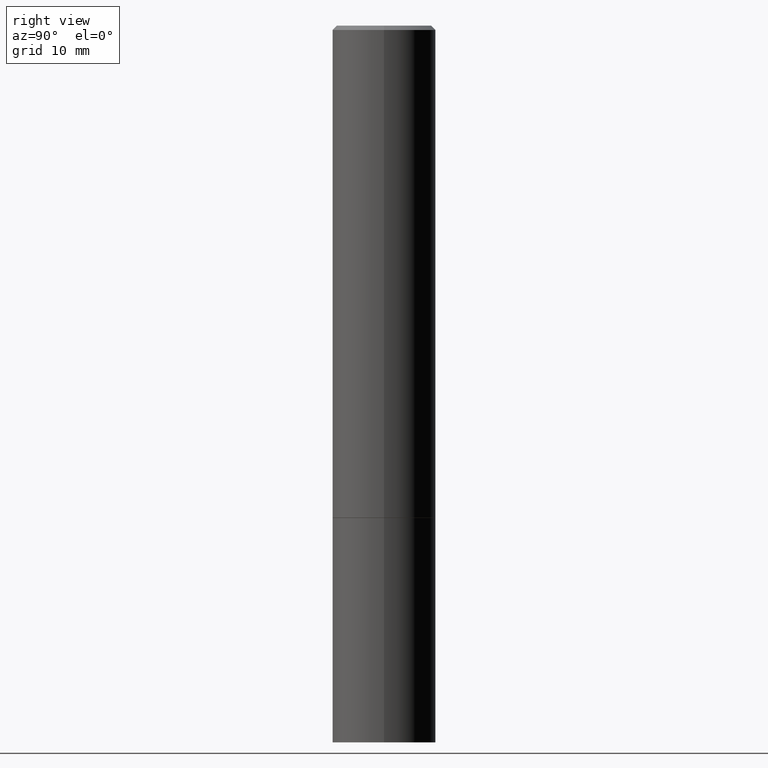
[diagram: clean part render]
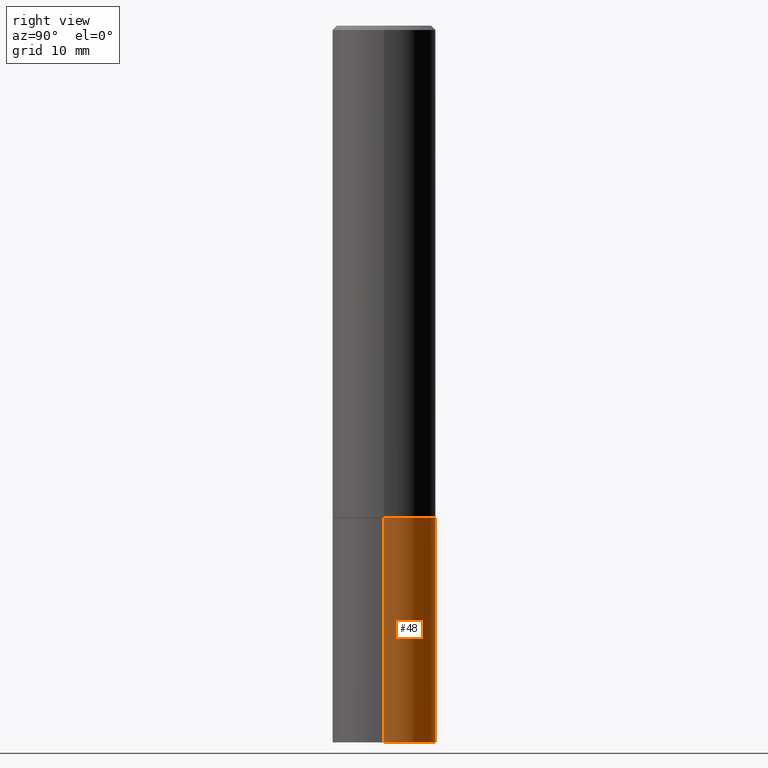
[diagram: same view with one face highlighted and labeled with its STEP entity id]
A machine part, right view. The second image highlights one B-rep face of the part: STEP entity #48.
In plain terms, the highlighted cylindrical surface (partial cylindrical patch) has radius 5.9995 mm, axis along (-0, 0, 1).
Its self-contained STEP definition (entity closure, byte-faithful):
#1 = EDGE_CURVE ( 'NONE', #11, #229, #306, .T. ) ;
#11 = VERTEX_POINT ( 'NONE', #192 ) ;
#14 = ORIENTED_EDGE ( 'NONE', *, *, #1, .T. ) ;
#19 = DIRECTION ( 'NONE',  ( -2.445468806185136597E-29, 3.491481338843145583E-15, 1.000000000000000000 ) ) ;
#20 = AXIS2_PLACEMENT_3D ( 'NONE', #321, #90, #350 ) ;
#43 = CARTESIAN_POINT ( 'NONE',  ( 7.991058417971171713E-29, -1.140911357093774644E-14, -3.267700000000000049 ) ) ;
#48 = ADVANCED_FACE ( 'NONE', ( #99 ), #263, .T. ) ;
#60 = CARTESIAN_POINT ( 'NONE',  ( -0.2361999999999999933, -7.943871479852467996E-15, -2.244100000000000428 ) ) ;
#61 = DIRECTION ( 'NONE',  ( -2.445468806185136877E-29, 3.491481338843145188E-15, 1.000000000000000000 ) ) ;
#69 = EDGE_CURVE ( 'NONE', #116, #11, #264, .T. ) ;
#82 = CARTESIAN_POINT ( 'NONE',  ( -0.2361999999999999933, 1.678301941865356591E-15, -1.161852468318208757E-29 ) ) ;
#90 = DIRECTION ( 'NONE',  ( -2.445468806185136597E-29, 3.491481338843145583E-15, 1.000000000000000000 ) ) ;
#91 = AXIS2_PLACEMENT_3D ( 'NONE', #43, #19, #151 ) ;
#92 = EDGE_CURVE ( 'NONE', #231, #229, #175, .T. ) ;
#93 = CARTESIAN_POINT ( 'NONE',  ( 0.000000000000000000, 0.000000000000000000, 0.000000000000000000 ) ) ;
#96 = DIRECTION ( 'NONE',  ( -2.445468806185136597E-29, 3.491481338843145583E-15, 1.000000000000000000 ) ) ;
#99 = FACE_OUTER_BOUND ( 'NONE', #167, .T. ) ;
#106 = DIRECTION ( 'NONE',  ( -2.445468806185136877E-29, 3.491481338843145188E-15, 1.000000000000000000 ) ) ;
#116 = VERTEX_POINT ( 'NONE', #362 ) ;
#151 = DIRECTION ( 'NONE',  ( 1.000000000000000000, -6.982962677686265133E-15, 0.000000000000000000 ) ) ;
#153 = DIRECTION ( 'NONE',  ( 1.000000000000000000, -6.982962677686266711E-15, 4.876176775795936353E-29 ) ) ;
#167 = EDGE_LOOP ( 'NONE', ( #340, #14, #266, #278 ) ) ;
#175 = CIRCLE ( 'NONE', #20, 0.2361999999999999933 ) ;
#192 = CARTESIAN_POINT ( 'NONE',  ( -0.2361999999999999933, -7.943871479852467996E-15, -3.267700000000000049 ) ) ;
#193 = CARTESIAN_POINT ( 'NONE',  ( 0.2361999999999999933, -1.649375784469496131E-15, 1.151752954443000088E-29 ) ) ;
#229 = VERTEX_POINT ( 'NONE', #60 ) ;
#231 = VERTEX_POINT ( 'NONE', #336 ) ;
#260 = EDGE_CURVE ( 'NONE', #116, #231, #283, .T. ) ;
#263 = CYLINDRICAL_SURFACE ( 'NONE', #300, 0.2361999999999999933 ) ;
#264 = CIRCLE ( 'NONE', #91, 0.2361999999999999933 ) ;
#265 = VECTOR ( 'NONE', #106, 39.37007874015748143 ) ;
#266 = ORIENTED_EDGE ( 'NONE', *, *, #92, .F. ) ;
#272 = VECTOR ( 'NONE', #61, 39.37007874015748143 ) ;
#278 = ORIENTED_EDGE ( 'NONE', *, *, #260, .F. ) ;
#283 = LINE ( 'NONE', #193, #265 ) ;
#300 = AXIS2_PLACEMENT_3D ( 'NONE', #93, #96, #153 ) ;
#306 = LINE ( 'NONE', #82, #272 ) ;
#321 = CARTESIAN_POINT ( 'NONE',  ( 5.487876547960065873E-29, -7.835233272497903917E-15, -2.244100000000000428 ) ) ;
#336 = CARTESIAN_POINT ( 'NONE',  ( 0.2361999999999999933, -9.484609056967400443E-15, -2.244100000000000428 ) ) ;
#340 = ORIENTED_EDGE ( 'NONE', *, *, #69, .T. ) ;
#350 = DIRECTION ( 'NONE',  ( 1.000000000000000000, -6.982962677686269077E-15, 0.000000000000000000 ) ) ;
#362 = CARTESIAN_POINT ( 'NONE',  ( 0.2361999999999999933, -1.305848935540724297E-14, -3.267700000000000049 ) ) ;